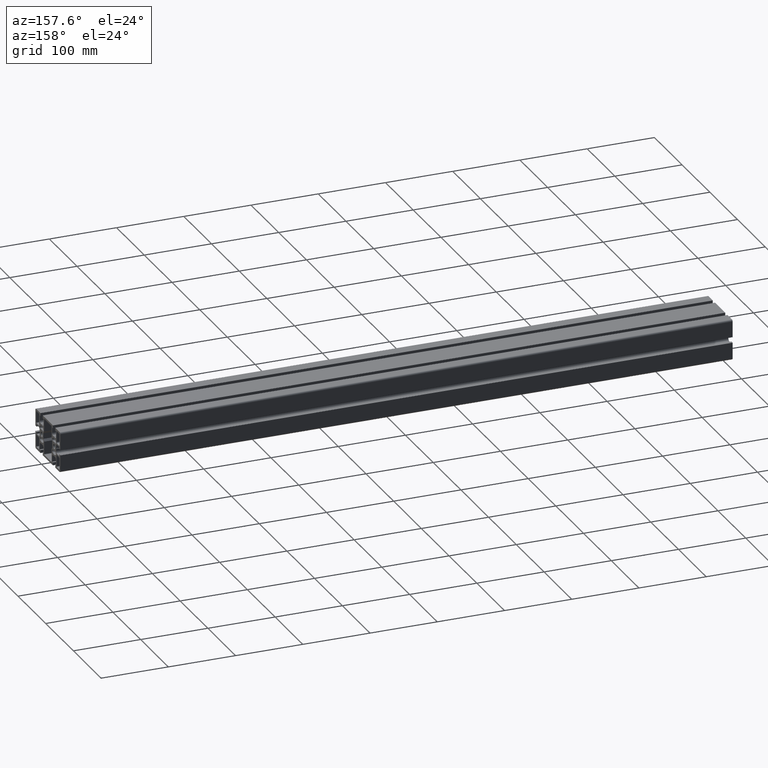
[diagram: clean part render]
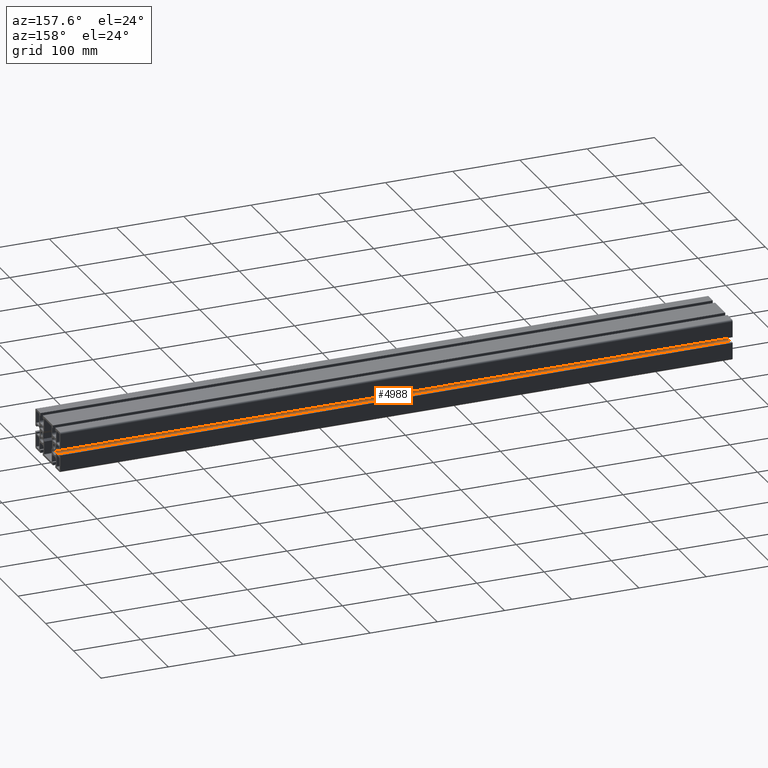
[diagram: same view with one face highlighted and labeled with its STEP entity id]
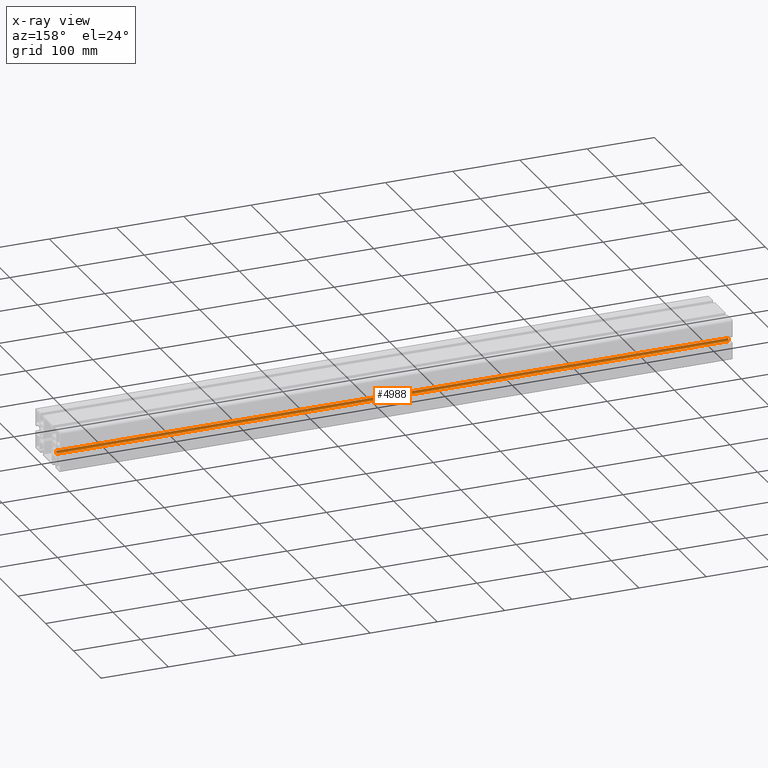
[diagram: x-ray of the same camera — body ghosted, the highlighted face saturated]
A machine part, auxiliary view. The second image highlights one B-rep face of the part: STEP entity #4988.
The next image is the same camera in x-ray: the body ghosted, the highlighted face saturated — about 0% of this face is hidden behind the body in this view.
In plain terms, the highlighted cylindrical surface (edge-blend (fillet) strip) has radius 3.2 mm, axis along (1, 0, 0).
Its self-contained STEP definition (entity closure, byte-faithful):
#159=CIRCLE('',#5378,3.19999999999981);
#160=CIRCLE('',#5379,3.19999999999981);
#234=CYLINDRICAL_SURFACE('',#5377,3.19999999999981);
#460=FACE_OUTER_BOUND('',#704,.T.);
#704=EDGE_LOOP('',(#4017,#4018,#4019,#4020));
#1286=LINE('',#8085,#1876);
#1287=LINE('',#8091,#1877);
#1876=VECTOR('',#6635,10.);
#1877=VECTOR('',#6642,10.);
#2369=VERTEX_POINT('',#8081);
#2370=VERTEX_POINT('',#8083);
#2371=VERTEX_POINT('',#8087);
#2372=VERTEX_POINT('',#8089);
#3072=EDGE_CURVE('',#2369,#2370,#1286,.T.);
#3073=EDGE_CURVE('',#2369,#2371,#159,.T.);
#3074=EDGE_CURVE('',#2372,#2370,#160,.T.);
#3075=EDGE_CURVE('',#2371,#2372,#1287,.T.);
#4017=ORIENTED_EDGE('',*,*,#3073,.F.);
#4018=ORIENTED_EDGE('',*,*,#3072,.T.);
#4019=ORIENTED_EDGE('',*,*,#3074,.F.);
#4020=ORIENTED_EDGE('',*,*,#3075,.F.);
#4988=ADVANCED_FACE('',(#460),#234,.F.);
#5377=AXIS2_PLACEMENT_3D('',#8086,#6636,#6637);
#5378=AXIS2_PLACEMENT_3D('',#8088,#6638,#6639);
#5379=AXIS2_PLACEMENT_3D('',#8090,#6640,#6641);
#6635=DIRECTION('',(1.,0.,0.));
#6636=DIRECTION('center_axis',(1.,0.,0.));
#6637=DIRECTION('ref_axis',(0.,-1.,-2.77555756156305E-15));
#6638=DIRECTION('center_axis',(1.,0.,0.));
#6639=DIRECTION('ref_axis',(0.,-1.,-2.77555756156305E-15));
#6640=DIRECTION('center_axis',(-1.,0.,0.));
#6641=DIRECTION('ref_axis',(0.,-1.,-2.77555756156305E-15));
#6642=DIRECTION('',(1.,0.,0.));
#8081=CARTESIAN_POINT('',(0.,52.2000000000014,-3.69672450000049));
#8083=CARTESIAN_POINT('',(1000.,52.2000000000014,-3.69672450000049));
#8085=CARTESIAN_POINT('',(0.,52.2000000000014,-3.69672450000049));
#8086=CARTESIAN_POINT('Origin',(0.,55.4000000000012,-3.69672450000048));
#8087=CARTESIAN_POINT('',(0.,55.4000000000012,-6.8967245000003));
#8088=CARTESIAN_POINT('Origin',(0.,55.4000000000012,-3.69672450000048));
#8089=CARTESIAN_POINT('',(1000.,55.4000000000012,-6.8967245000003));
#8090=CARTESIAN_POINT('Origin',(1000.,55.4000000000012,-3.69672450000048));
#8091=CARTESIAN_POINT('',(0.,55.4000000000012,-6.8967245000003));